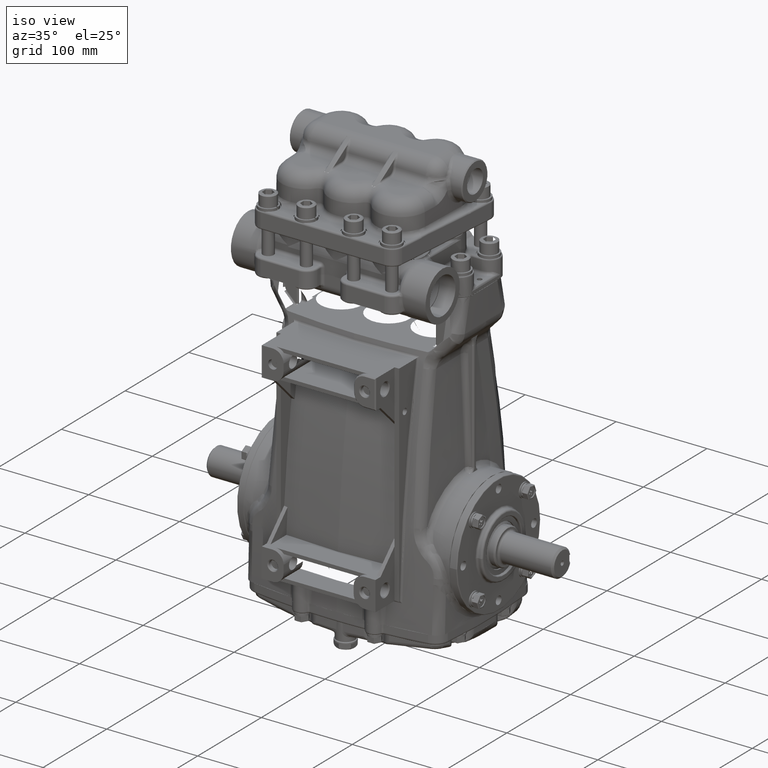
[diagram: clean part render]
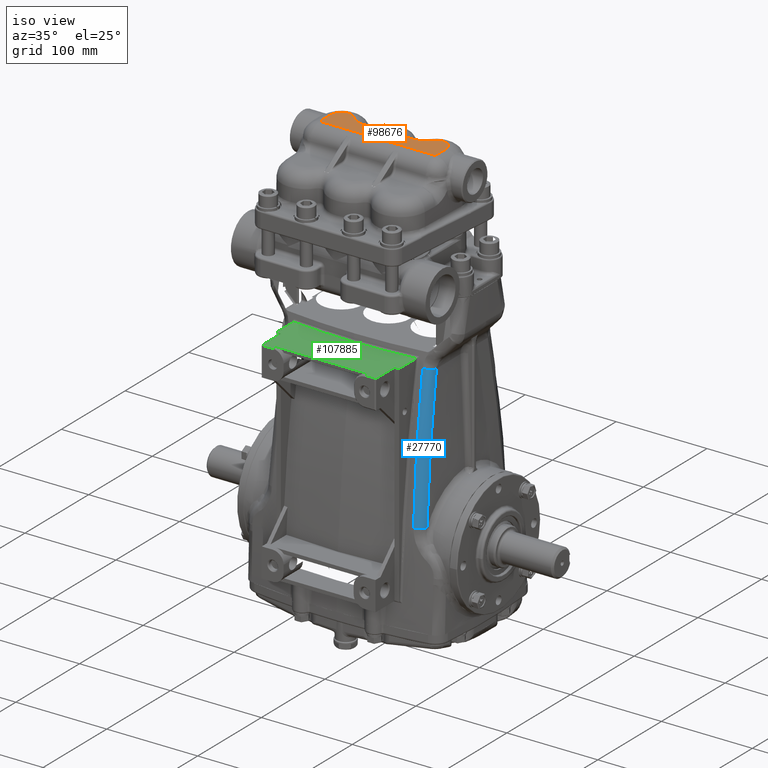
[diagram: same view with three faces highlighted in distinct colors, each labeled with its STEP entity id]
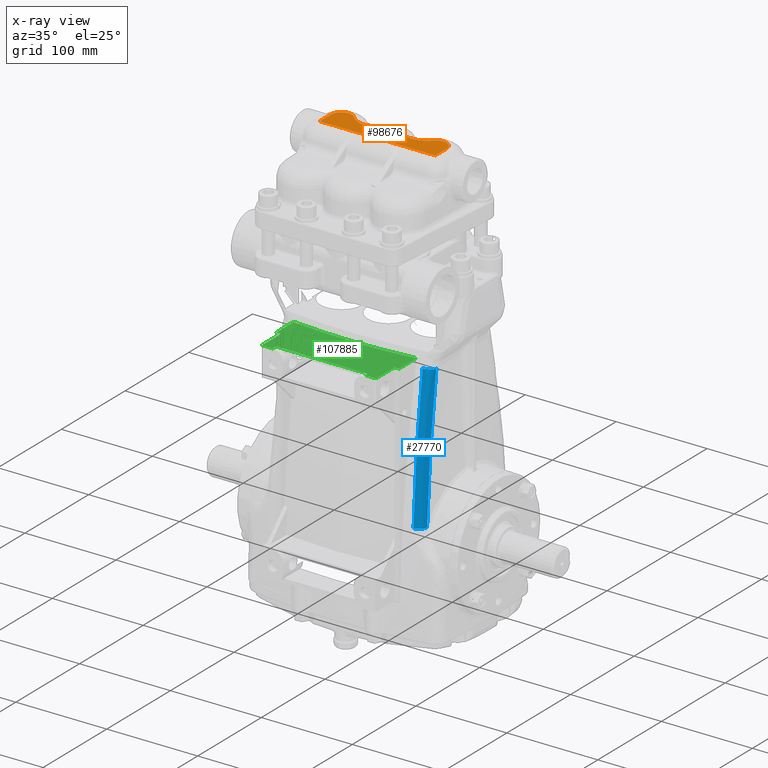
[diagram: x-ray of the same camera — body ghosted, the three highlighted faces saturated]
A machine part, iso view with three faces highlighted in distinct colors.
The next image is the same camera in x-ray (body ghosted, the three faces saturated) — at least one of them is partly hidden behind the body in this view.
Their STEP definitions:

[orange] entity #98676 — the highlighted planar face has unit normal (0, 0, 1).
#1139 = CARTESIAN_POINT ( 'NONE',  ( -1.659222326368737566, 0.2421451674576058088, 14.88188976377952955 ) ) ;
#1971 = AXIS2_PLACEMENT_3D ( 'NONE', #62974, #107923, #30860 ) ;
#2408 = ORIENTED_EDGE ( 'NONE', *, *, #74011, .T. ) ;
#2508 = DIRECTION ( 'NONE',  ( 1.000000000000000000, 0.000000000000000000, 0.000000000000000000 ) ) ;
#3396 = CARTESIAN_POINT ( 'NONE',  ( -1.411564218592000541, 0.06603354423617033286, 14.88188976377952066 ) ) ;
#4313 = CARTESIAN_POINT ( 'NONE',  ( 0.6213856094694920618, 0.07266086085190281985, 14.88188976377953487 ) ) ;
#4868 = CARTESIAN_POINT ( 'NONE',  ( 0.3671234361671828483, 0.2669458910773306326, 14.88188976377953487 ) ) ;
#5415 = CARTESIAN_POINT ( 'NONE',  ( 1.183479778556355111, -0.008877466109816980686, 14.88188976377954198 ) ) ;
#5621 = VERTEX_POINT ( 'NONE', #83346 ) ;
#5977 = CARTESIAN_POINT ( 'NONE',  ( 1.536556218183342315, 0.1396359859933991587, 14.88188976377953310 ) ) ;
#7408 = CARTESIAN_POINT ( 'NONE',  ( -1.135706603409249782, -0.01629823338595563081, 14.88188976377952955 ) ) ;
#9076 = CARTESIAN_POINT ( 'NONE',  ( -0.8957261479876326149, -0.01413907180133191534, 14.88188976377952066 ) ) ;
#11001 = DIRECTION ( 'NONE',  ( 0.000000000000000000, 0.000000000000000000, 1.000000000000000000 ) ) ;
#11269 = VERTEX_POINT ( 'NONE', #12619 ) ;
#12619 = CARTESIAN_POINT ( 'NONE',  ( 1.701018990273274412, 0.2917466146970544294, 14.88188976377952955 ) ) ;
#13872 = CARTESIAN_POINT ( 'NONE',  ( 0.4360204860222316459, 0.1988919602449079060, 14.88188976377952777 ) ) ;
#16619 = FACE_OUTER_BOUND ( 'NONE', #99622, .T. ) ;
#17170 = CARTESIAN_POINT ( 'NONE',  ( -2.499999999999999556, -0.6889763779527560139, 14.88188976377952955 ) ) ;
#17668 = LINE ( 'NONE', #43527, #99299 ) ;
#18072 = CARTESIAN_POINT ( 'NONE',  ( -1.087873696600401452, -0.02152046614273326816, 14.88188976377953310 ) ) ;
#18627 = CARTESIAN_POINT ( 'NONE',  ( -1.468476959808244997, 0.09635995158870190591, 14.88188976377953487 ) ) ;
#19748 = CARTESIAN_POINT ( 'NONE',  ( -1.425941122487095036, 0.07319596891781110504, 14.88188976377953487 ) ) ;
#20264 = VERTEX_POINT ( 'NONE', #93685 ) ;
#20659 = CARTESIAN_POINT ( 'NONE',  ( -0.3462251042149148139, 0.2917466146970549290, 14.88188976377952955 ) ) ;
#22531 = DIRECTION ( 'NONE',  ( 0.000000000000000000, -1.000000000000000000, 0.000000000000000000 ) ) ;
#22866 = CARTESIAN_POINT ( 'NONE',  ( 1.659222326368737566, 0.2421451674576058088, 14.88188976377952955 ) ) ;
#23422 = CARTESIAN_POINT ( 'NONE',  ( 0.3462251042149148139, 0.2917466146970549290, 14.88188976377952955 ) ) ;
#26526 = CARTESIAN_POINT ( 'NONE',  ( -0.9118252982073299373, -0.01633662016808443834, 14.88188976377953310 ) ) ;
#29310 = CARTESIAN_POINT ( 'NONE',  ( -1.701018990273274412, 0.2917466146970544294, 14.88188976377952955 ) ) ;
#29353 = VECTOR ( 'NONE', #31512, 39.37007874015748143 ) ;
#30737 = CARTESIAN_POINT ( 'NONE',  ( 1.199434966102725930, -0.005799554881021953476, 14.88188976377952955 ) ) ;
#30860 = DIRECTION ( 'NONE',  ( -1.000000000000000000, 0.000000000000000000, 0.000000000000000000 ) ) ;
#31512 = DIRECTION ( 'NONE',  ( 1.000000000000000000, -0.000000000000000000, 0.000000000000000000 ) ) ;
#33256 = CARTESIAN_POINT ( 'NONE',  ( -0.3462251042149148139, 0.2917466146970549290, 14.88188976377952955 ) ) ;
#34019 = DIRECTION ( 'NONE',  ( 0.000000000000000000, 0.000000000000000000, 1.000000000000000000 ) ) ;
#34163 = VECTOR ( 'NONE', #22531, 39.37007874015748143 ) ;
#36219 = CARTESIAN_POINT ( 'NONE',  ( 2.499999999999999556, -0.6889763779527560139, 14.88188976377952955 ) ) ;
#36551 = EDGE_CURVE ( 'NONE', #91364, #63137, #102197, .T. ) ;
#38616 = CARTESIAN_POINT ( 'NONE',  ( 0.8957261479876326149, -0.01413907180133191534, 14.88188976377952066 ) ) ;
#41159 = CARTESIAN_POINT ( 'NONE',  ( -0.9919720189180328829, -0.02328351759687280823, 14.88188976377953487 ) ) ;
#41194 = EDGE_CURVE ( 'NONE', #5621, #84566, #74230, .T. ) ;
#41718 = CARTESIAN_POINT ( 'NONE',  ( -1.151639044823686175, -0.01412092837544311370, 14.88188976377954198 ) ) ;
#42824 = CARTESIAN_POINT ( 'NONE',  ( -0.6213856094694920618, 0.07266086085190281985, 14.88188976377953487 ) ) ;
#43527 = CARTESIAN_POINT ( 'NONE',  ( -2.499999999999999556, -0.6889763779527561249, 14.88188976377952955 ) ) ;
#47081 = CARTESIAN_POINT ( 'NONE',  ( 0.9118252982073299373, -0.01633662016808443834, 14.88188976377953310 ) ) ;
#47215 = ORIENTED_EDGE ( 'NONE', *, *, #59027, .F. ) ;
#48193 = CARTESIAN_POINT ( 'NONE',  ( 0.5926440953352934971, 0.08797126472004954123, 14.88188976377953487 ) ) ;
#48612 = VERTEX_POINT ( 'NONE', #52374 ) ;
#49294 = CARTESIAN_POINT ( 'NONE',  ( 1.087873696600401452, -0.02152046614273326816, 14.88188976377953310 ) ) ;
#50166 = CARTESIAN_POINT ( 'NONE',  ( -0.5926440953352934971, 0.08797126472004954123, 14.88188976377953487 ) ) ;
#51268 = CARTESIAN_POINT ( 'NONE',  ( -0.4360204860222316459, 0.1988919602449079060, 14.88188976377952777 ) ) ;
#52374 = CARTESIAN_POINT ( 'NONE',  ( -2.499999999999999556, 0.000000000000000000, 14.88188976377952955 ) ) ;
#52387 = CARTESIAN_POINT ( 'NONE',  ( -1.536556218183342315, 0.1396359859933991587, 14.88188976377953310 ) ) ;
#52719 = AXIS2_PLACEMENT_3D ( 'NONE', #91291, #99195, #106571 ) ;
#52940 = CARTESIAN_POINT ( 'NONE',  ( -1.612815368739160204, 0.1979961919535734860, 14.88188976377952955 ) ) ;
#55520 = CARTESIAN_POINT ( 'NONE',  ( 0.7090595735996577664, 0.03195772950665082962, 14.88188976377953487 ) ) ;
#56606 = CARTESIAN_POINT ( 'NONE',  ( 0.3894168575088287620, 0.2432747557463411370, 14.88188976377952599 ) ) ;
#57724 = ORIENTED_EDGE ( 'NONE', *, *, #41194, .T. ) ;
#59027 = EDGE_CURVE ( 'NONE', #11269, #20264, #65116, .T. ) ;
#60258 = CARTESIAN_POINT ( 'NONE',  ( -0.8480252399984177236, -0.005841345577738225707, 14.88188976377953487 ) ) ;
#60617 = ORIENTED_EDGE ( 'NONE', *, *, #96404, .T. ) ;
#60815 = CARTESIAN_POINT ( 'NONE',  ( -0.9599422371208835569, -0.02156871546058932929, 14.88188976377953310 ) ) ;
#61359 = CARTESIAN_POINT ( 'NONE',  ( -1.454379299025956307, 0.08834797690071405363, 14.88188976377953487 ) ) ;
#62484 = CARTESIAN_POINT ( 'NONE',  ( -1.510018447404383624, 0.1215048766412262643, 14.88188976377952955 ) ) ;
#62721 = CARTESIAN_POINT ( 'NONE',  ( -2.047244094488188448, 0.000000000000000000, 14.88188976377952955 ) ) ;
#62974 = CARTESIAN_POINT ( 'NONE',  ( 2.047244094488188448, 0.000000000000000000, 14.88188976377952955 ) ) ;
#63137 = VERTEX_POINT ( 'NONE', #29310 ) ;
#63610 = VERTEX_POINT ( 'NONE', #72677 ) ;
#64493 = CARTESIAN_POINT ( 'NONE',  ( 0.9599422371208835569, -0.02156871546058932929, 14.88188976377953310 ) ) ;
#65037 = CARTESIAN_POINT ( 'NONE',  ( 1.468476959808244997, 0.09635995158870190591, 14.88188976377953487 ) ) ;
#65116 = CIRCLE ( 'NONE', #1971, 0.4527559055118108855 ) ;
#65263 = LINE ( 'NONE', #72605, #34163 ) ;
#66142 = CARTESIAN_POINT ( 'NONE',  ( 1.411564218592000541, 0.06603354423617033286, 14.88188976377952066 ) ) ;
#67575 = CARTESIAN_POINT ( 'NONE',  ( -1.278316874415918125, 0.01167487076245248175, 14.88188976377953310 ) ) ;
#68333 = DIRECTION ( 'NONE',  ( 1.000000000000000000, 0.000000000000000000, -0.000000000000000000 ) ) ;
#69230 = CARTESIAN_POINT ( 'NONE',  ( -0.7696467147271479625, 0.01149145306957509959, 14.88188976377952777 ) ) ;
#70348 = CARTESIAN_POINT ( 'NONE',  ( -1.338903161173488732, 0.03225645395711090879, 14.88188976377952066 ) ) ;
#70361 = B_SPLINE_CURVE_WITH_KNOTS ( 'NONE', 3,
 ( #23422, #4868, #56606, #13872, #107794, #73455, #48193, #4313, #55520, #82433, #82987, #91985, #38616, #47081, #64493, #90882, #74551, #49294, #99891, #72923, #5415, #30737, #108343, #108897, #66142, #100442, #107255, #65037, #89790, #5977, #99337, #22866, #98793 ),
 .UNSPECIFIED., .F., .F.,
 ( 4, 2, 1, 2, 2, 2, 2, 2, 2, 2, 2, 2, 2, 2, 2, 2, 4 ),
 ( 0.000000000000000000, 0.002470385136317719121, 0.004940770272635438241, 0.007411155408953156928, 0.009881540545270876483, 0.01482231081790632253, 0.01605750338606518751, 0.01729269595422405076, 0.01976308109054178072, 0.02223346622685950721, 0.02346865879501837393, 0.02470385136317723718, 0.02964462163581271098, 0.03087981420397158810, 0.03211500677213046523, 0.03458539190844824029, 0.03952616218108379736 ),
 .UNSPECIFIED. ) ;
#70527 = EDGE_CURVE ( 'NONE', #63610, #11269, #70361, .T. ) ;
#72230 = AXIS2_PLACEMENT_3D ( 'NONE', #62721, #11001, #2508 ) ;
#72605 = CARTESIAN_POINT ( 'NONE',  ( 2.499999999999999556, -0.6889763779527561249, 14.88188976377952955 ) ) ;
#72677 = CARTESIAN_POINT ( 'NONE',  ( 0.3462251042149148139, 0.2917466146970549290, 14.88188976377952955 ) ) ;
#72923 = CARTESIAN_POINT ( 'NONE',  ( 1.151639044823686175, -0.01412092837544311370, 14.88188976377954198 ) ) ;
#73455 = CARTESIAN_POINT ( 'NONE',  ( 0.5376374878344962749, 0.1212446871798530945, 14.88188976377953310 ) ) ;
#74011 = EDGE_CURVE ( 'NONE', #48612, #5621, #17668, .T. ) ;
#74230 = LINE ( 'NONE', #108570, #29353 ) ;
#74551 = CARTESIAN_POINT ( 'NONE',  ( 1.055937751113143364, -0.02325948331168307265, 14.88188976377953665 ) ) ;
#75990 = CARTESIAN_POINT ( 'NONE',  ( -1.183479778556355111, -0.008877466109816980686, 14.88188976377954198 ) ) ;
#76432 = AXIS2_PLACEMENT_3D ( 'NONE', #17170, #34019, #68333 ) ;
#77100 = CARTESIAN_POINT ( 'NONE',  ( -0.7090595735996577664, 0.03195772950665082962, 14.88188976377953487 ) ) ;
#77654 = CARTESIAN_POINT ( 'NONE',  ( -0.3671234361671828483, 0.2669458910773306326, 14.88188976377953487 ) ) ;
#82433 = CARTESIAN_POINT ( 'NONE',  ( 0.7696467147271479625, 0.01149145306957509959, 14.88188976377952777 ) ) ;
#82987 = CARTESIAN_POINT ( 'NONE',  ( 0.8480252399984177236, -0.005841345577738225707, 14.88188976377953487 ) ) ;
#83346 = CARTESIAN_POINT ( 'NONE',  ( -2.499999999999999556, -0.6889763779527560139, 14.88188976377952955 ) ) ;
#84566 = VERTEX_POINT ( 'NONE', #36219 ) ;
#85171 = PLANE ( 'NONE',  #76432 ) ;
#85516 = CARTESIAN_POINT ( 'NONE',  ( -0.4847468155570502923, 0.1573155358575971663, 14.88188976377952422 ) ) ;
#86069 = CARTESIAN_POINT ( 'NONE',  ( -0.3894168575088287620, 0.2432747557463411370, 14.88188976377952599 ) ) ;
#86248 = ORIENTED_EDGE ( 'NONE', *, *, #70527, .F. ) ;
#86901 = EDGE_CURVE ( 'NONE', #20264, #84566, #65263, .T. ) ;
#88427 = CIRCLE ( 'NONE', #72230, 0.4527559055118108855 ) ;
#89790 = CARTESIAN_POINT ( 'NONE',  ( 1.510018447404383624, 0.1215048766412262643, 14.88188976377952955 ) ) ;
#90882 = CARTESIAN_POINT ( 'NONE',  ( 0.9919720189180328829, -0.02328351759687280823, 14.88188976377953487 ) ) ;
#91250 = ORIENTED_EDGE ( 'NONE', *, *, #86901, .F. ) ;
#91291 = CARTESIAN_POINT ( 'NONE',  ( 0.000000000000000000, 0.000000000000000000, 14.88188976377952955 ) ) ;
#91364 = VERTEX_POINT ( 'NONE', #20659 ) ;
#91985 = CARTESIAN_POINT ( 'NONE',  ( 0.8638346393362056341, -0.008890834830019952312, 14.88188976377952422 ) ) ;
#92582 = ORIENTED_EDGE ( 'NONE', *, *, #36551, .T. ) ;
#92751 = EDGE_CURVE ( 'NONE', #63137, #48612, #88427, .T. ) ;
#93685 = CARTESIAN_POINT ( 'NONE',  ( 2.499999999999999556, 0.000000000000000000, 14.88188976377952955 ) ) ;
#94537 = CARTESIAN_POINT ( 'NONE',  ( -0.8638346393362056341, -0.008890834830019952312, 14.88188976377952422 ) ) ;
#95087 = CARTESIAN_POINT ( 'NONE',  ( -1.055937751113143364, -0.02325948331168307265, 14.88188976377953665 ) ) ;
#96198 = CARTESIAN_POINT ( 'NONE',  ( -1.701018990273274412, 0.2917466146970544294, 14.88188976377952955 ) ) ;
#96358 = DIRECTION ( 'NONE',  ( 0.000000000000000000, -1.000000000000000000, 0.000000000000000000 ) ) ;
#96404 = EDGE_CURVE ( 'NONE', #63610, #91364, #106611, .T. ) ;
#98676 = ADVANCED_FACE ( 'NONE', ( #16619 ), #85171, .T. ) ;
#98793 = CARTESIAN_POINT ( 'NONE',  ( 1.701018990273274412, 0.2917466146970544294, 14.88188976377952955 ) ) ;
#99195 = DIRECTION ( 'NONE',  ( 0.000000000000000000, 0.000000000000000000, 1.000000000000000000 ) ) ;
#99299 = VECTOR ( 'NONE', #96358, 39.37007874015748143 ) ;
#99337 = CARTESIAN_POINT ( 'NONE',  ( 1.612815368739160204, 0.1979961919535734860, 14.88188976377952955 ) ) ;
#99622 = EDGE_LOOP ( 'NONE', ( #92582, #105793, #2408, #57724, #91250, #47215, #86248, #60617 ) ) ;
#99891 = CARTESIAN_POINT ( 'NONE',  ( 1.135706603409249782, -0.01629823338595563081, 14.88188976377952955 ) ) ;
#100442 = CARTESIAN_POINT ( 'NONE',  ( 1.425941122487095036, 0.07319596891781110504, 14.88188976377953487 ) ) ;
#101334 = CARTESIAN_POINT ( 'NONE',  ( -0.5376374878344962749, 0.1212446871798530945, 14.88188976377953310 ) ) ;
#102197 = B_SPLINE_CURVE_WITH_KNOTS ( 'NONE', 3,
 ( #33256, #77654, #86069, #51268, #85516, #101334, #50166, #42824, #77100, #69230, #60258, #94537, #9076, #26526, #60815, #41159, #95087, #18072, #7408, #41718, #75990, #110327, #67575, #70348, #3396, #19748, #61359, #18627, #62484, #52387, #52940, #1139, #96198 ),
 .UNSPECIFIED., .F., .F.,
 ( 4, 2, 1, 2, 2, 2, 2, 2, 2, 2, 2, 2, 2, 2, 2, 2, 4 ),
 ( 0.000000000000000000, 0.002470385136317719121, 0.004940770272635438241, 0.007411155408953156928, 0.009881540545270876483, 0.01482231081790632253, 0.01605750338606518751, 0.01729269595422405076, 0.01976308109054178072, 0.02223346622685950721, 0.02346865879501837393, 0.02470385136317723718, 0.02964462163581271098, 0.03087981420397158810, 0.03211500677213046523, 0.03458539190844824029, 0.03952616218108379736 ),
 .UNSPECIFIED. ) ;
#105793 = ORIENTED_EDGE ( 'NONE', *, *, #92751, .T. ) ;
#106571 = DIRECTION ( 'NONE',  ( 1.000000000000000000, 0.000000000000000000, 0.000000000000000000 ) ) ;
#106611 = CIRCLE ( 'NONE', #52719, 0.4527559055118110520 ) ;
#107255 = CARTESIAN_POINT ( 'NONE',  ( 1.454379299025956307, 0.08834797690071405363, 14.88188976377953487 ) ) ;
#107794 = CARTESIAN_POINT ( 'NONE',  ( 0.4847468155570502923, 0.1573155358575971663, 14.88188976377952422 ) ) ;
#107923 = DIRECTION ( 'NONE',  ( -0.000000000000000000, -0.000000000000000000, -1.000000000000000000 ) ) ;
#108343 = CARTESIAN_POINT ( 'NONE',  ( 1.278316874415918125, 0.01167487076245248175, 14.88188976377953310 ) ) ;
#108570 = CARTESIAN_POINT ( 'NONE',  ( 5.463695987328526437E-16, -0.6889763779527560139, 14.88188976377952955 ) ) ;
#108897 = CARTESIAN_POINT ( 'NONE',  ( 1.338903161173488732, 0.03225645395711090879, 14.88188976377952066 ) ) ;
#110327 = CARTESIAN_POINT ( 'NONE',  ( -1.199434966102725930, -0.005799554881021953476, 14.88188976377952955 ) ) ;

[blue] entity #27770 — the highlighted face is a freeform B-spline surface patch.
#947 = CARTESIAN_POINT ( 'NONE',  ( 3.276092934165422577, -1.874930731037542708, 6.145710688700730451 ) ) ;
#2265 = ORIENTED_EDGE ( 'NONE', *, *, #63230, .T. ) ;
#3084 = CARTESIAN_POINT ( 'NONE',  ( 3.227622695897828020, -2.014429051635469037, 7.175989675265094014 ) ) ;
#7227 = CARTESIAN_POINT ( 'NONE',  ( 3.264830003215271503, -1.790352451881298101, 6.632740362638705811 ) ) ;
#7247 = CARTESIAN_POINT ( 'NONE',  ( 3.400416622625798801, -2.485933415316755823, 1.242621956940731298 ) ) ;
#11005 = CARTESIAN_POINT ( 'NONE',  ( 2.920594300905771323, -2.143894739352163015, 6.686585011091456643 ) ) ;
#13517 = CARTESIAN_POINT ( 'NONE',  ( 2.967937963435823168, -2.453670341601340787, 4.720811185144329514 ) ) ;
#14093 = ORIENTED_EDGE ( 'NONE', *, *, #81226, .F. ) ;
#15035 = B_SPLINE_CURVE_WITH_KNOTS ( 'NONE', 3,
 ( #91641, #82641, #30394, #83743, #13517, #75317, #39377, #108551 ),
 .UNSPECIFIED., .F., .F.,
 ( 4, 2, 2, 4 ),
 ( 0.000000000000000000, 0.03791539286464012254, 0.07583078572928024508, 0.1516615714585605457 ),
 .UNSPECIFIED. ) ;
#15148 = CARTESIAN_POINT ( 'NONE',  ( 3.314018011745015979, -2.607923892380912267, 3.247420052450951999 ) ) ;
#21766 = DIRECTION ( 'NONE',  ( 0.000000000000000000, -0.9968254628366001180, 0.07961781610040445656 ) ) ;
#23029 = CARTESIAN_POINT ( 'NONE',  ( 3.031362508050650550, -2.752888458771057589, 2.252376400268835344 ) ) ;
#24700 = CARTESIAN_POINT ( 'NONE',  ( 3.299006719102179908, -2.031474798595048981, 5.169569179845835194 ) ) ;
#25224 = CARTESIAN_POINT ( 'NONE',  ( 3.299006623009694827, -2.031473982748887686, 5.169573422073846736 ) ) ;
#27770 = ADVANCED_FACE ( 'NONE', ( #84246 ), #31829, .T. ) ;
#30394 = CARTESIAN_POINT ( 'NONE',  ( 2.932243926739105611, -2.227597444549193284, 6.196062338724784624 ) ) ;
#31780 = DIRECTION ( 'NONE',  ( 0.02307262428466250528, -0.1806706860312782825, -0.9832729820439521928 ) ) ;
#31829 =( BOUNDED_SURFACE ( )  B_SPLINE_SURFACE ( 3, 2, ( 
 ( #7247, #41557, #70031 ),
 ( #75830, #93253, #23029 ),
 ( #92153, #15148, #49452 ),
 ( #109615, #84793, #110162 ),
 ( #24700, #91598, #42101 ),
 ( #33649, #79012, #97579 ),
 ( #37400, #54853, #11005 ),
 ( #54304, #3084, #55405 ) ),
 .UNSPECIFIED., .F., .F., .F. ) 
 B_SPLINE_SURFACE_WITH_KNOTS ( ( 4, 2, 2, 4 ),
 ( 3, 3 ),
 ( 0.2700009483961782752, 0.3453420125814122832, 0.3830125446740293427, 0.4206830767666463466 ),
 ( 0.000000000000000000, 1.000000000000000000 ),
 .UNSPECIFIED. ) 
 GEOMETRIC_REPRESENTATION_ITEM ( )  RATIONAL_B_SPLINE_SURFACE ( (
 ( 1.000000000000000000, 0.7871110720266875083, 1.000000000000000000),
 ( 1.000000000000000000, 0.7858017268271078049, 1.000000000000000000),
 ( 1.000000000000000000, 0.7841400692670416062, 1.000000000000000000),
 ( 1.000000000000000000, 0.7810923986001433450, 1.000000000000000000),
 ( 1.000000000000000000, 0.7799842349294455746, 1.000000000000000000),
 ( 1.000000000000000000, 0.7775808677955905468, 1.000000000000000000),
 ( 1.000000000000000000, 0.7762853967147509415, 1.000000000000000000),
 ( 1.000000000000000000, 0.7748913394806461463, 1.000000000000000000) ) ) 
 REPRESENTATION_ITEM ( '' )  SURFACE ( )  );
#33625 = CARTESIAN_POINT ( 'NONE',  ( 3.400416622625797469, -2.485933415316753603, 1.242621956940731298 ) ) ;
#33649 = CARTESIAN_POINT ( 'NONE',  ( 3.276092118613856297, -1.874924999938353265, 6.145745580333595193 ) ) ;
#35481 = B_SPLINE_CURVE_WITH_KNOTS ( 'NONE', 3,
 ( #33625, #51081, #77463, #94339, #25224, #947, #7227, #86440 ),
 .UNSPECIFIED., .F., .F.,
 ( 4, 2, 2, 4 ),
 ( 2.081668171172168513E-17, 0.07533152614002699976, 0.1129972892100404858, 0.1506630522800539440 ),
 .UNSPECIFIED. ) ;
#37400 = CARTESIAN_POINT ( 'NONE',  ( 3.264829321311889299, -1.790346961754611943, 6.632769727231832668 ) ) ;
#39377 = CARTESIAN_POINT ( 'NONE',  ( 3.031364747037960328, -2.752894607858371590, 2.252299366766498334 ) ) ;
#41557 = CARTESIAN_POINT ( 'NONE',  ( 3.365993698327214290, -2.791630044602437355, 1.266050455089534843 ) ) ;
#41727 = ORIENTED_EDGE ( 'NONE', *, *, #70398, .T. ) ;
#42101 = CARTESIAN_POINT ( 'NONE',  ( 2.955904935700074176, -2.382417020820538855, 5.213623750161788806 ) ) ;
#49452 = CARTESIAN_POINT ( 'NONE',  ( 3.005098192019551195, -2.648322767509283082, 3.241509680815982453 ) ) ;
#51081 = CARTESIAN_POINT ( 'NONE',  ( 3.372278961407888520, -2.405915839356913111, 2.228061146476073784 ) ) ;
#52485 = EDGE_CURVE ( 'NONE', #95089, #61093, #105756, .T. ) ;
#54304 = CARTESIAN_POINT ( 'NONE',  ( 3.253544350005575403, -1.699490213687784745, 7.118729752179641324 ) ) ;
#54853 = CARTESIAN_POINT ( 'NONE',  ( 3.237813528913471295, -2.104099720102603488, 6.687948488811814585 ) ) ;
#55405 = CARTESIAN_POINT ( 'NONE',  ( 2.908924084382267239, -2.054030274880821683, 7.175787866453349650 ) ) ;
#55970 = CARTESIAN_POINT ( 'NONE',  ( 3.400416622625797469, -2.485933415316753603, 1.242621956940731298 ) ) ;
#57241 = AXIS2_PLACEMENT_3D ( 'NONE', #91375, #31780, #99829 ) ;
#58164 = CARTESIAN_POINT ( 'NONE',  ( 3.060185611310922482, -2.832064026058386474, 1.260503522742631333 ) ) ;
#61093 = VERTEX_POINT ( 'NONE', #106596 ) ;
#63230 = EDGE_CURVE ( 'NONE', #61093, #64288, #15035, .T. ) ;
#64121 = VERTEX_POINT ( 'NONE', #55970 ) ;
#64288 = VERTEX_POINT ( 'NONE', #58164 ) ;
#64332 = AXIS2_PLACEMENT_3D ( 'NONE', #64499, #79700, #21766 ) ;
#64499 = CARTESIAN_POINT ( 'NONE',  ( 3.009336097476825067, -2.443018725461952645, 1.227970600536262280 ) ) ;
#66068 = CIRCLE ( 'NONE', #64332, 0.3937007874015750475 ) ;
#70031 = CARTESIAN_POINT ( 'NONE',  ( 3.060185611310926923, -2.832064026058385142, 1.260503522742630222 ) ) ;
#70398 = EDGE_CURVE ( 'NONE', #64121, #95089, #35481, .T. ) ;
#75317 = CARTESIAN_POINT ( 'NONE',  ( 3.005102302106316792, -2.648339109513909051, 3.241354714735967146 ) ) ;
#75830 = CARTESIAN_POINT ( 'NONE',  ( 3.372282661610733534, -2.405926362156115328, 2.227931557113610239 ) ) ;
#77463 = CARTESIAN_POINT ( 'NONE',  ( 3.346725384126179037, -2.300232651194634492, 3.210678714191208094 ) ) ;
#79012 = CARTESIAN_POINT ( 'NONE',  ( 3.248100380581383728, -2.187758160122772022, 6.197890000316552239 ) ) ;
#79700 = DIRECTION ( 'NONE',  ( 0.02859640161908392000, -0.07958525554122881929, -0.9964178003803814132 ) ) ;
#81226 = EDGE_CURVE ( 'NONE', #64121, #64288, #66068, .T. ) ;
#81699 = EDGE_LOOP ( 'NONE', ( #14093, #41727, #103869, #2265 ) ) ;
#82641 = CARTESIAN_POINT ( 'NONE',  ( 2.920597976238645810, -2.143923039642377848, 6.686430950302453269 ) ) ;
#83743 = CARTESIAN_POINT ( 'NONE',  ( 2.955912677792809973, -2.382464806686301451, 5.213304865856610348 ) ) ;
#84246 = FACE_OUTER_BOUND ( 'NONE', #81699, .T. ) ;
#84793 = CARTESIAN_POINT ( 'NONE',  ( 3.280106872120419403, -2.413698933595350926, 4.723718530416910255 ) ) ;
#86440 = CARTESIAN_POINT ( 'NONE',  ( 3.253544350005577623, -1.699490213687816720, 7.118729752179474346 ) ) ;
#91375 = CARTESIAN_POINT ( 'NONE',  ( 2.861233276605688047, -1.669863722269221196, 7.104080428144908588 ) ) ;
#91598 = CARTESIAN_POINT ( 'NONE',  ( 3.269244097861963017, -2.342512127544893019, 5.215953642128394740 ) ) ;
#91641 = CARTESIAN_POINT ( 'NONE',  ( 2.908924084382254360, -2.054030274880821683, 7.175787866453346098 ) ) ;
#91689 = CARTESIAN_POINT ( 'NONE',  ( 3.253544350005577623, -1.699490213687816720, 7.118729752179474346 ) ) ;
#92153 = CARTESIAN_POINT ( 'NONE',  ( 3.346729444826344491, -2.300252588094944706, 3.210517008420054719 ) ) ;
#93253 = CARTESIAN_POINT ( 'NONE',  ( 3.338533920785742737, -2.712519621612108800, 2.258434183740718915 ) ) ;
#94339 = CARTESIAN_POINT ( 'NONE',  ( 3.310659838845672720, -2.103452567182737987, 4.680358048511499724 ) ) ;
#95089 = VERTEX_POINT ( 'NONE', #91689 ) ;
#97579 = CARTESIAN_POINT ( 'NONE',  ( 2.932237989104934162, -2.227555720727148358, 6.196311456047181032 ) ) ;
#99829 = DIRECTION ( 'NONE',  ( 0.000000000000000000, -0.9835348073000224067, 0.1807187948977856118 ) ) ;
#103869 = ORIENTED_EDGE ( 'NONE', *, *, #52485, .T. ) ;
#105756 = CIRCLE ( 'NONE', #57241, 0.3937007874015748254 ) ;
#106596 = CARTESIAN_POINT ( 'NONE',  ( 2.908924084382254360, -2.054030274880821683, 7.175787866453346098 ) ) ;
#108551 = CARTESIAN_POINT ( 'NONE',  ( 3.060185611310922482, -2.832064026058386474, 1.260503522742631333 ) ) ;
#109615 = CARTESIAN_POINT ( 'NONE',  ( 3.310661390316871344, -2.103462141626652127, 4.680292941630155745 ) ) ;
#110162 = CARTESIAN_POINT ( 'NONE',  ( 2.967931201104567318, -2.453632325806843983, 4.721084710076762114 ) ) ;

[green] entity #107885 — the highlighted planar face has unit normal (0, 0, -1).
#1712 = VECTOR ( 'NONE', #18720, 39.37007874015748143 ) ;
#1762 = CARTESIAN_POINT ( 'NONE',  ( -6.927127178268874649E-16, -2.233563264182857999, 7.519685039370078705 ) ) ;
#2541 = CARTESIAN_POINT ( 'NONE',  ( 1.988188976377950556, 19685.03937007874265, 7.519685039370078705 ) ) ;
#2668 = CARTESIAN_POINT ( 'NONE',  ( -2.657717525373034739, -2.084069808505191634, 7.519685039370078705 ) ) ;
#4878 = ORIENTED_EDGE ( 'NONE', *, *, #93313, .T. ) ;
#5907 = VECTOR ( 'NONE', #33782, 39.37007874015748143 ) ;
#9193 = DIRECTION ( 'NONE',  ( 0.000000000000000000, 0.000000000000000000, -1.000000000000000000 ) ) ;
#9749 = VERTEX_POINT ( 'NONE', #26792 ) ;
#10385 = VECTOR ( 'NONE', #21465, 39.37007874015748143 ) ;
#11417 = ORIENTED_EDGE ( 'NONE', *, *, #51343, .F. ) ;
#13303 = DIRECTION ( 'NONE',  ( 0.000000000000000000, -1.000000000000000000, -0.000000000000000000 ) ) ;
#13348 = CARTESIAN_POINT ( 'NONE',  ( -0.8880031665036636213, -2.221022023670193413, 7.519685039370080482 ) ) ;
#13405 = ORIENTED_EDGE ( 'NONE', *, *, #65139, .F. ) ;
#13778 = CARTESIAN_POINT ( 'NONE',  ( 2.460629921259842590, -3.149606299212598604, 7.519685039370077817 ) ) ;
#14238 = VECTOR ( 'NONE', #34464, 39.37007874015748143 ) ;
#15435 = VERTEX_POINT ( 'NONE', #63849 ) ;
#17748 = CARTESIAN_POINT ( 'NONE',  ( -1.988188976377950112, -4.133858267716535195, 7.519685039370078705 ) ) ;
#18523 = CARTESIAN_POINT ( 'NONE',  ( -2.657717525373034739, -2.084069808505191634, 7.519685039370078705 ) ) ;
#18664 = VECTOR ( 'NONE', #34026, 39.37007874015748143 ) ;
#18720 = DIRECTION ( 'NONE',  ( 1.000000000000000000, 0.000000000000000000, 0.000000000000000000 ) ) ;
#19770 = ORIENTED_EDGE ( 'NONE', *, *, #43422, .F. ) ;
#20584 = B_SPLINE_CURVE_WITH_KNOTS ( 'NONE', 3,
 ( #18523, #28641, #45507, #26965 ),
 .UNSPECIFIED., .F., .F.,
 ( 4, 4 ),
 ( 0.000000000000000000, 0.0001580908622162033002 ),
 .UNSPECIFIED. ) ;
#20660 = VERTEX_POINT ( 'NONE', #13778 ) ;
#20704 = CARTESIAN_POINT ( 'NONE',  ( -0.4443542664897027206, -2.233563264182857999, 7.519685039370078705 ) ) ;
#20784 = CARTESIAN_POINT ( 'NONE',  ( -2.460629921259841701, -4.330708661417323135, 7.519685039370078705 ) ) ;
#20962 = CARTESIAN_POINT ( 'NONE',  ( 2.657559491806074981, -2.086138464083594712, 7.519685039370078705 ) ) ;
#21025 = B_SPLINE_CURVE_WITH_KNOTS ( 'NONE', 3,
 ( #90631, #47931, #20962, #55272 ),
 .UNSPECIFIED., .F., .F.,
 ( 4, 4 ),
 ( 1.083267794737359837E-14, 0.0001580908622270445630 ),
 .UNSPECIFIED. ) ;
#21280 = CARTESIAN_POINT ( 'NONE',  ( -1.988188976377950556, 19685.03937007874265, 7.519685039370078705 ) ) ;
#21465 = DIRECTION ( 'NONE',  ( 0.000000000000000000, -1.000000000000000000, -0.000000000000000000 ) ) ;
#23711 = VERTEX_POINT ( 'NONE', #64041 ) ;
#24615 = ORIENTED_EDGE ( 'NONE', *, *, #26445, .T. ) ;
#24737 = ORIENTED_EDGE ( 'NONE', *, *, #93223, .T. ) ;
#26445 = EDGE_CURVE ( 'NONE', #97467, #90491, #102102, .T. ) ;
#26449 = LINE ( 'NONE', #92380, #96818 ) ;
#26792 = CARTESIAN_POINT ( 'NONE',  ( -2.460629921259842590, -3.149606299212598604, 7.519685039370077817 ) ) ;
#26965 = CARTESIAN_POINT ( 'NONE',  ( -2.657480314960630086, -2.090289336285340749, 7.519685039370077817 ) ) ;
#27632 = VERTEX_POINT ( 'NONE', #80963 ) ;
#27697 = CARTESIAN_POINT ( 'NONE',  ( 0.8880031665036631772, -2.221022023670201850, 7.519685039370074264 ) ) ;
#28460 = LINE ( 'NONE', #2541, #46137 ) ;
#28641 = CARTESIAN_POINT ( 'NONE',  ( -2.657559491806077645, -2.086138464083541866, 7.519685039370078705 ) ) ;
#28869 = LINE ( 'NONE', #63165, #57984 ) ;
#30346 = EDGE_CURVE ( 'NONE', #70010, #99072, #28460, .T. ) ;
#31110 = B_SPLINE_CURVE_WITH_KNOTS ( 'NONE', 3,
 ( #77163, #87255, #34415, #27697, #44559, #1762 ),
 .UNSPECIFIED., .F., .F.,
 ( 4, 2, 4 ),
 ( -6.053836689116898128E-06, 0.03380031263407504843, 0.06760667910483923737 ),
 .UNSPECIFIED. ) ;
#31624 = ORIENTED_EDGE ( 'NONE', *, *, #56095, .T. ) ;
#31975 = LINE ( 'NONE', #82563, #95105 ) ;
#33359 = VECTOR ( 'NONE', #47137, 39.37007874015748143 ) ;
#33782 = DIRECTION ( 'NONE',  ( 1.000000000000000000, 0.000000000000000000, 0.000000000000000000 ) ) ;
#34026 = DIRECTION ( 'NONE',  ( -0.000000000000000000, -1.000000000000000000, -0.000000000000000000 ) ) ;
#34415 = CARTESIAN_POINT ( 'NONE',  ( 1.773910464993445402, -2.171216771117151279, 7.519685039370078705 ) ) ;
#34464 = DIRECTION ( 'NONE',  ( -0.000000000000000000, -1.000000000000000000, -0.000000000000000000 ) ) ;
#38562 = EDGE_CURVE ( 'NONE', #99072, #104210, #61447, .T. ) ;
#39786 = ORIENTED_EDGE ( 'NONE', *, *, #38562, .T. ) ;
#39932 = ORIENTED_EDGE ( 'NONE', *, *, #98437, .F. ) ;
#40820 = LINE ( 'NONE', #75093, #101515 ) ;
#41778 = CARTESIAN_POINT ( 'NONE',  ( -2.657480314960630086, -2.090289336285340749, 7.519685039370077817 ) ) ;
#43422 = EDGE_CURVE ( 'NONE', #70010, #68278, #28869, .T. ) ;
#44559 = CARTESIAN_POINT ( 'NONE',  ( 0.4443542664897018879, -2.233563264182857555, 7.519685039370078705 ) ) ;
#44999 = CARTESIAN_POINT ( 'NONE',  ( 1.988188976377950556, -4.291338582676395674, 7.519685039370078705 ) ) ;
#45507 = CARTESIAN_POINT ( 'NONE',  ( -2.657480314960634082, -2.088214653054334846, 7.519685039370078705 ) ) ;
#45678 = LINE ( 'NONE', #46240, #10385 ) ;
#46137 = VECTOR ( 'NONE', #79609, 39.37007874015748143 ) ;
#46240 = CARTESIAN_POINT ( 'NONE',  ( 2.657480314960630086, 19685.03937007874265, 7.519685039370077817 ) ) ;
#47137 = DIRECTION ( 'NONE',  ( -0.000000000000000000, -1.000000000000000000, -0.000000000000000000 ) ) ;
#47931 = CARTESIAN_POINT ( 'NONE',  ( 2.657480314960630086, -2.088214653054440983, 7.519685039370159529 ) ) ;
#51343 = EDGE_CURVE ( 'NONE', #27632, #15435, #45678, .T. ) ;
#55005 = CARTESIAN_POINT ( 'NONE',  ( -1.773910464993446068, -2.171216771117161048, 7.519685039370077817 ) ) ;
#55272 = CARTESIAN_POINT ( 'NONE',  ( 2.657717525373036072, -2.084069808505191190, 7.519685039370078705 ) ) ;
#56095 = EDGE_CURVE ( 'NONE', #64815, #94809, #31110, .T. ) ;
#56118 = VERTEX_POINT ( 'NONE', #62547 ) ;
#56604 = CARTESIAN_POINT ( 'NONE',  ( 2.460629921259841701, -4.291338582676395674, 7.519685039370078705 ) ) ;
#56765 = ORIENTED_EDGE ( 'NONE', *, *, #61543, .T. ) ;
#57541 = DIRECTION ( 'NONE',  ( -1.000000000000000000, 0.000000000000000000, 0.000000000000000000 ) ) ;
#57984 = VECTOR ( 'NONE', #70468, 39.37007874015748143 ) ;
#61447 = LINE ( 'NONE', #95731, #1712 ) ;
#61543 = EDGE_CURVE ( 'NONE', #94809, #56118, #102478, .T. ) ;
#62547 = CARTESIAN_POINT ( 'NONE',  ( -2.657717525373034739, -2.084069808505191634, 7.519685039370078705 ) ) ;
#63165 = CARTESIAN_POINT ( 'NONE',  ( -2.460629921259841701, -4.133858267716535195, 7.519685039370078705 ) ) ;
#63849 = CARTESIAN_POINT ( 'NONE',  ( 2.657480314960630086, -3.149606299212598604, 7.519685039370077817 ) ) ;
#64041 = CARTESIAN_POINT ( 'NONE',  ( -1.988188976377950556, -4.330708661417323135, 7.519685039370078705 ) ) ;
#64815 = VERTEX_POINT ( 'NONE', #73646 ) ;
#65139 = EDGE_CURVE ( 'NONE', #68278, #23711, #79751, .T. ) ;
#66271 = DIRECTION ( 'NONE',  ( 1.000000000000000000, -0.000000000000000000, -0.000000000000000000 ) ) ;
#68238 = CARTESIAN_POINT ( 'NONE',  ( -1.988188976377950556, 19685.03937007874265, 7.519685039370078705 ) ) ;
#68278 = VERTEX_POINT ( 'NONE', #17748 ) ;
#68622 = CARTESIAN_POINT ( 'NONE',  ( 1.988188976377950112, -4.133858267716535195, 7.519685039370078705 ) ) ;
#68797 = FACE_OUTER_BOUND ( 'NONE', #88699, .T. ) ;
#68905 = CARTESIAN_POINT ( 'NONE',  ( -2.657480314960630086, 19685.03937007874265, 7.519685039370077817 ) ) ;
#70010 = VERTEX_POINT ( 'NONE', #68622 ) ;
#70468 = DIRECTION ( 'NONE',  ( -1.000000000000000000, -0.000000000000000000, -0.000000000000000000 ) ) ;
#71719 = EDGE_CURVE ( 'NONE', #56118, #97467, #20584, .T. ) ;
#73470 = ORIENTED_EDGE ( 'NONE', *, *, #105780, .T. ) ;
#73646 = CARTESIAN_POINT ( 'NONE',  ( 2.657717525373036072, -2.084069808505191190, 7.519685039370078705 ) ) ;
#75093 = CARTESIAN_POINT ( 'NONE',  ( 2.460629921259841701, 19685.03937007874265, 7.519685039370078705 ) ) ;
#75623 = AXIS2_PLACEMENT_3D ( 'NONE', #68238, #9193, #84525 ) ;
#76100 = CARTESIAN_POINT ( 'NONE',  ( -2.460629921259841701, 19685.03937007874265, 7.519685039370078705 ) ) ;
#77163 = CARTESIAN_POINT ( 'NONE',  ( 2.657717525373036072, -2.084069808505191190, 7.519685039370078705 ) ) ;
#79609 = DIRECTION ( 'NONE',  ( 0.000000000000000000, -1.000000000000000000, -0.000000000000000000 ) ) ;
#79751 = LINE ( 'NONE', #21280, #33359 ) ;
#80963 = CARTESIAN_POINT ( 'NONE',  ( 2.657480314960630086, -2.090289336285340749, 7.519685039370077817 ) ) ;
#82563 = CARTESIAN_POINT ( 'NONE',  ( -1.988188976377950556, -4.330708661417323135, 7.519685039370078705 ) ) ;
#84525 = DIRECTION ( 'NONE',  ( -1.000000000000000000, 0.000000000000000000, -0.000000000000000000 ) ) ;
#84799 = EDGE_CURVE ( 'NONE', #15435, #20660, #26449, .T. ) ;
#84853 = VERTEX_POINT ( 'NONE', #20784 ) ;
#85586 = EDGE_CURVE ( 'NONE', #84853, #23711, #31975, .T. ) ;
#87255 = CARTESIAN_POINT ( 'NONE',  ( 2.216167371312572687, -2.133921736559586613, 7.519685039370080482 ) ) ;
#88699 = EDGE_LOOP ( 'NONE', ( #98639, #39786, #39932, #106899, #11417, #24737, #31624, #56765, #90947, #24615, #4878, #73470, #106208, #13405, #19770 ) ) ;
#90491 = VERTEX_POINT ( 'NONE', #95286 ) ;
#90631 = CARTESIAN_POINT ( 'NONE',  ( 2.657480314960630086, -2.090289336285340749, 7.519685039370077817 ) ) ;
#90947 = ORIENTED_EDGE ( 'NONE', *, *, #71719, .T. ) ;
#92380 = CARTESIAN_POINT ( 'NONE',  ( 2.657480314960630086, -3.149606299212598604, 7.519685039370077817 ) ) ;
#92981 = LINE ( 'NONE', #76100, #14238 ) ;
#93223 = EDGE_CURVE ( 'NONE', #27632, #64815, #21025, .T. ) ;
#93313 = EDGE_CURVE ( 'NONE', #90491, #9749, #100744, .T. ) ;
#94809 = VERTEX_POINT ( 'NONE', #110390 ) ;
#95105 = VECTOR ( 'NONE', #66271, 39.37007874015748143 ) ;
#95286 = CARTESIAN_POINT ( 'NONE',  ( -2.657480314960630086, -3.149606299212598604, 7.519685039370077817 ) ) ;
#95731 = CARTESIAN_POINT ( 'NONE',  ( -1.988188976377950556, -4.291338582676395674, 7.519685039370078705 ) ) ;
#96818 = VECTOR ( 'NONE', #57541, 39.37007874015748143 ) ;
#97467 = VERTEX_POINT ( 'NONE', #41778 ) ;
#98437 = EDGE_CURVE ( 'NONE', #20660, #104210, #40820, .T. ) ;
#98639 = ORIENTED_EDGE ( 'NONE', *, *, #30346, .T. ) ;
#99072 = VERTEX_POINT ( 'NONE', #44999 ) ;
#99374 = CARTESIAN_POINT ( 'NONE',  ( -6.927127178268874649E-16, -2.233563264182857999, 7.519685039370078705 ) ) ;
#100744 = LINE ( 'NONE', #110857, #5907 ) ;
#101515 = VECTOR ( 'NONE', #13303, 39.37007874015748143 ) ;
#102102 = LINE ( 'NONE', #68905, #18664 ) ;
#102478 = B_SPLINE_CURVE_WITH_KNOTS ( 'NONE', 3,
 ( #99374, #20704, #13348, #55005, #107835, #2668 ),
 .UNSPECIFIED., .F., .F.,
 ( 4, 2, 4 ),
 ( 3.890387882894678876E-19, 0.03380636647076414730, 0.06761273294152829461 ),
 .UNSPECIFIED. ) ;
#103675 = PLANE ( 'NONE',  #75623 ) ;
#104210 = VERTEX_POINT ( 'NONE', #56604 ) ;
#105780 = EDGE_CURVE ( 'NONE', #9749, #84853, #92981, .T. ) ;
#106208 = ORIENTED_EDGE ( 'NONE', *, *, #85586, .T. ) ;
#106899 = ORIENTED_EDGE ( 'NONE', *, *, #84799, .F. ) ;
#107835 = CARTESIAN_POINT ( 'NONE',  ( -2.216167371312541601, -2.133921736559592830, 7.519685039370080482 ) ) ;
#107885 = ADVANCED_FACE ( 'NONE', ( #68797 ), #103675, .F. ) ;
#110390 = CARTESIAN_POINT ( 'NONE',  ( -6.927127178268874649E-16, -2.233563264182857999, 7.519685039370078705 ) ) ;
#110857 = CARTESIAN_POINT ( 'NONE',  ( -2.657480314960630086, -3.149606299212598604, 7.519685039370077817 ) ) ;